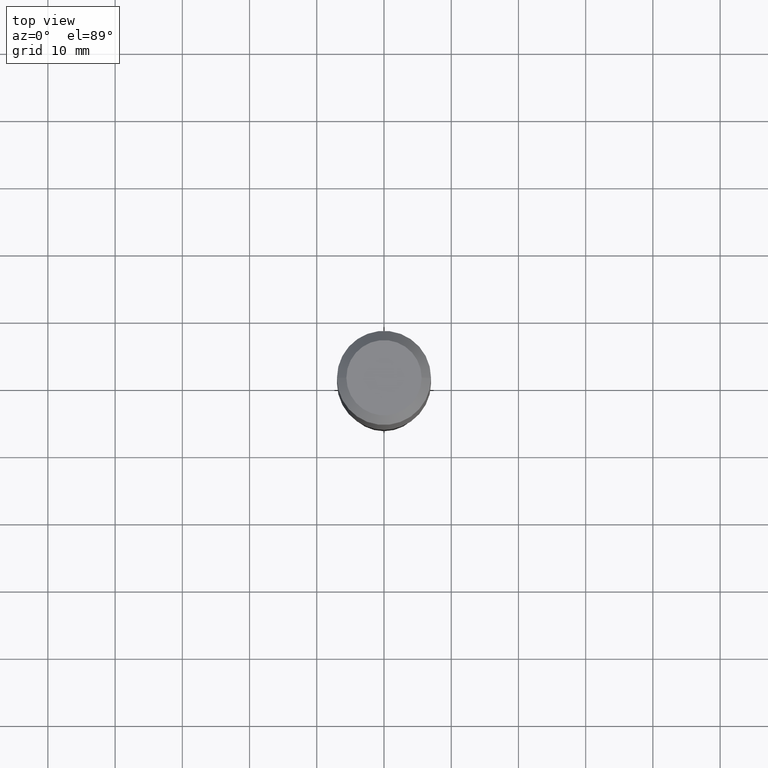
[diagram: clean part render]
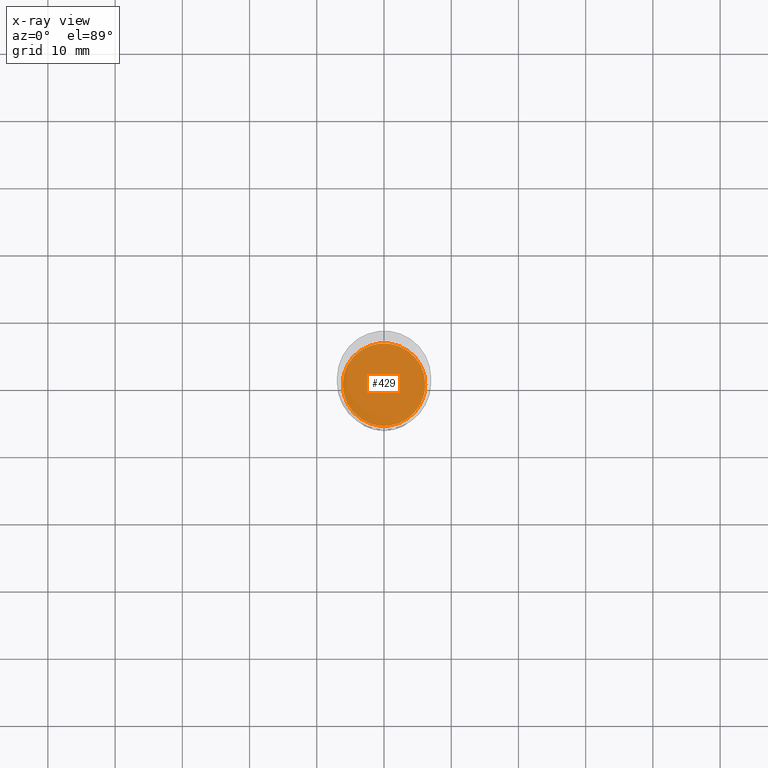
[diagram: x-ray — body ghosted, one internal face saturated and labeled with its STEP entity id]
A machine part, top view, then the same camera in x-ray: the body is ghosted and one INTERNAL B-rep face — a face not visible from any outside direction — is saturated and labeled: STEP entity #429.
In plain terms, the highlighted planar face has unit normal (-0, 0, 1).
Its self-contained STEP definition (entity closure, byte-faithful):
#23 = VERTEX_POINT ( 'NONE', #334 ) ;
#27 = AXIS2_PLACEMENT_3D ( 'NONE', #349, #225, #464 ) ;
#47 = DIRECTION ( 'NONE',  ( -2.438088387897960049E-29, 3.491481338843145188E-15, 1.000000000000000000 ) ) ;
#92 = ORIENTED_EDGE ( 'NONE', *, *, #210, .F. ) ;
#121 = CIRCLE ( 'NONE', #298, 0.2417000000000000259 ) ;
#165 = CARTESIAN_POINT ( 'NONE',  ( 5.709680568681057909E-29, -8.151910629930978075E-15, -2.334800000000000431 ) ) ;
#166 = ORIENTED_EDGE ( 'NONE', *, *, #262, .F. ) ;
#192 = VERTEX_POINT ( 'NONE', #423 ) ;
#210 = EDGE_CURVE ( 'NONE', #192, #23, #257, .T. ) ;
#225 = DIRECTION ( 'NONE',  ( -2.445468806185136597E-29, 3.491481338843145583E-15, 1.000000000000000000 ) ) ;
#248 = DIRECTION ( 'NONE',  ( 1.000000000000000000, -6.982962677686265922E-15, 4.876176775795935793E-29 ) ) ;
#257 = CIRCLE ( 'NONE', #27, 0.2417000000000000259 ) ;
#262 = EDGE_CURVE ( 'NONE', #23, #192, #121, .T. ) ;
#298 = AXIS2_PLACEMENT_3D ( 'NONE', #165, #356, #468 ) ;
#306 = FACE_OUTER_BOUND ( 'NONE', #364, .T. ) ;
#334 = CARTESIAN_POINT ( 'NONE',  ( 0.2417000000000000259, -9.839692709127749257E-15, -2.334800000000000431 ) ) ;
#349 = CARTESIAN_POINT ( 'NONE',  ( 5.709680568681057909E-29, -8.151910629930978075E-15, -2.334800000000000431 ) ) ;
#356 = DIRECTION ( 'NONE',  ( -2.445468806185136597E-29, 3.491481338843145583E-15, 1.000000000000000000 ) ) ;
#364 = EDGE_LOOP ( 'NONE', ( #166, #92 ) ) ;
#394 = PLANE ( 'NONE',  #407 ) ;
#407 = AXIS2_PLACEMENT_3D ( 'NONE', #414, #47, #248 ) ;
#414 = CARTESIAN_POINT ( 'NONE',  ( 3.866918409069370939E-29, -1.079085092600351434E-14, -2.334800000000000431 ) ) ;
#423 = CARTESIAN_POINT ( 'NONE',  ( -0.2417000000000000259, -6.431879610424704541E-15, -2.334800000000000431 ) ) ;
#429 = ADVANCED_FACE ( 'NONE', ( #306 ), #394, .F. ) ;
#464 = DIRECTION ( 'NONE',  ( 1.000000000000000000, -6.982962677686267499E-15, 0.000000000000000000 ) ) ;
#468 = DIRECTION ( 'NONE',  ( 1.000000000000000000, -6.982962677686267499E-15, 0.000000000000000000 ) ) ;